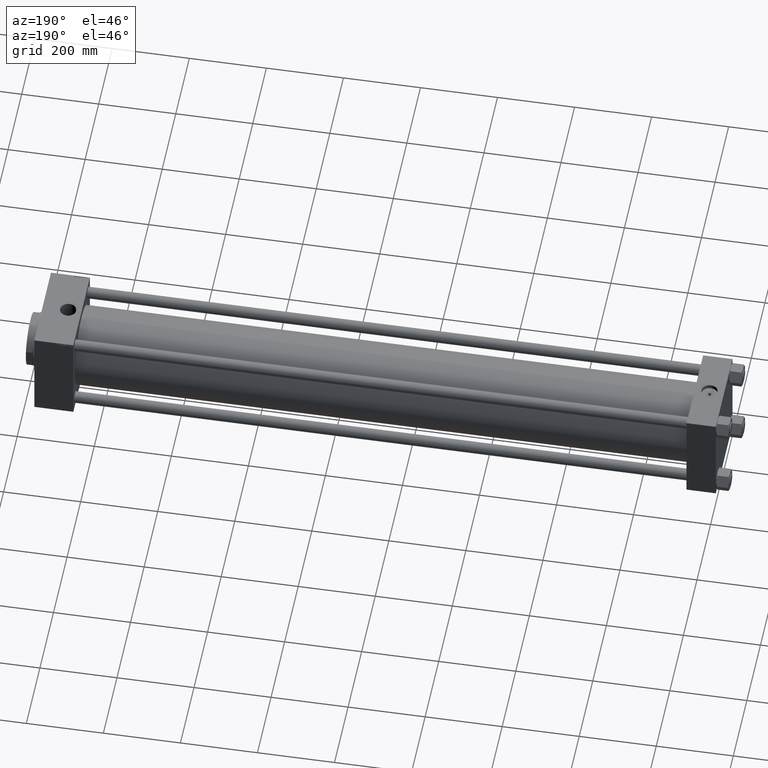
[diagram: clean part render]
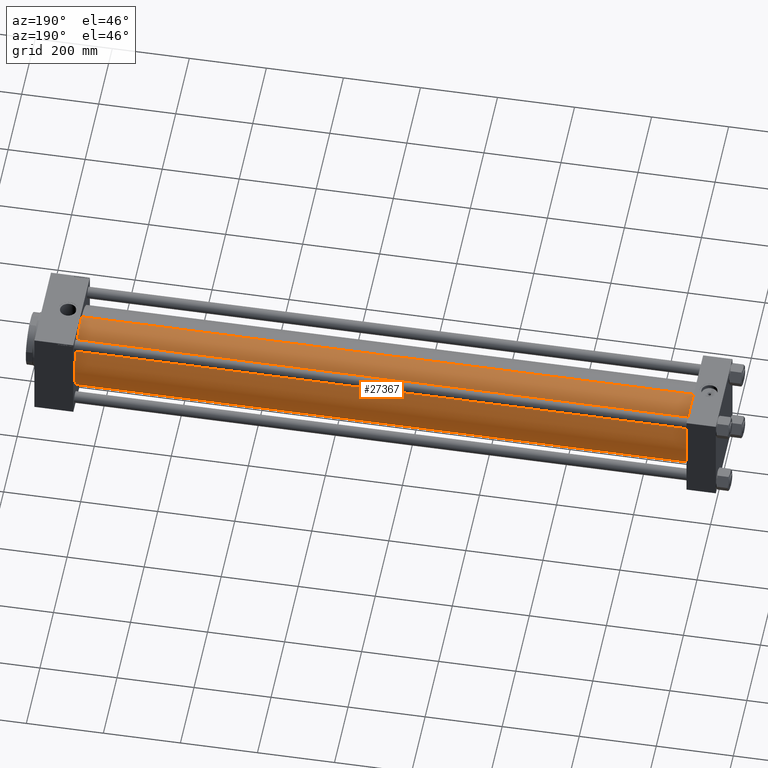
[diagram: same view with one face highlighted and labeled with its STEP entity id]
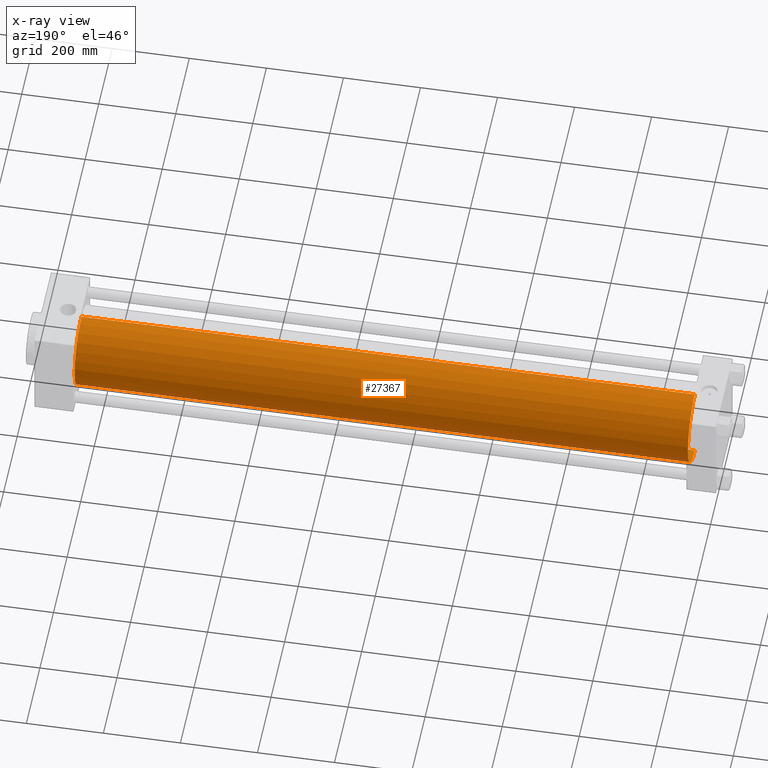
[diagram: x-ray of the same camera — body ghosted, the highlighted face saturated]
A machine part, auxiliary view. The second image highlights one B-rep face of the part: STEP entity #27367.
The next image is the same camera in x-ray: the body ghosted, the highlighted face saturated — about 0% of this face is hidden behind the body in this view.
In plain terms, the highlighted cylindrical surface (partial cylindrical patch) has radius 103 mm, axis along (-1, -0, -0).
Its self-contained STEP definition (entity closure, byte-faithful):
#619 = AXIS2_PLACEMENT_3D ( 'NONE', #39702, #35721, #37280 ) ;
#1627 = DIRECTION ( 'NONE',  ( 0.000000000000000000, 0.000000000000000000, 1.000000000000000000 ) ) ;
#3669 = EDGE_LOOP ( 'NONE', ( #8838, #10377, #6585, #37889 ) ) ;
#4778 = CIRCLE ( 'NONE', #15805, 103.0000000000000000 ) ;
#5349 = CYLINDRICAL_SURFACE ( 'NONE', #45106, 103.0000000000000000 ) ;
#6585 = ORIENTED_EDGE ( 'NONE', *, *, #42984, .T. ) ;
#8838 = ORIENTED_EDGE ( 'NONE', *, *, #38334, .F. ) ;
#8916 = CARTESIAN_POINT ( 'NONE',  ( 1668.000000000000227, -2.602085213965210642E-15, 103.0000000000000000 ) ) ;
#10377 = ORIENTED_EDGE ( 'NONE', *, *, #28055, .T. ) ;
#15805 = AXIS2_PLACEMENT_3D ( 'NONE', #50334, #30136, #50587 ) ;
#16356 = LINE ( 'NONE', #8916, #30403 ) ;
#16420 = VERTEX_POINT ( 'NONE', #37340 ) ;
#17814 = FACE_OUTER_BOUND ( 'NONE', #3669, .T. ) ;
#19240 = CIRCLE ( 'NONE', #619, 103.0000000000000000 ) ;
#20184 = CARTESIAN_POINT ( 'NONE',  ( 1668.000000000000227, -2.602085213965210642E-15, 103.0000000000000000 ) ) ;
#20537 = VECTOR ( 'NONE', #44674, 1000.000000000000000 ) ;
#21524 = DIRECTION ( 'NONE',  ( -1.000000000000000000, -0.000000000000000000, -0.000000000000000000 ) ) ;
#23496 = CARTESIAN_POINT ( 'NONE',  ( 76.00000000000007105, -2.602085213965210642E-15, 103.0000000000000000 ) ) ;
#27367 = ADVANCED_FACE ( 'NONE', ( #17814 ), #5349, .T. ) ;
#28055 = EDGE_CURVE ( 'NONE', #46917, #16420, #43883, .T. ) ;
#28545 = DIRECTION ( 'NONE',  ( -1.000000000000000000, -0.000000000000000000, -0.000000000000000000 ) ) ;
#30136 = DIRECTION ( 'NONE',  ( 1.000000000000000000, 0.000000000000000000, 0.000000000000000000 ) ) ;
#30403 = VECTOR ( 'NONE', #28545, 1000.000000000000000 ) ;
#33992 = CARTESIAN_POINT ( 'NONE',  ( 1668.000000000000227, -2.602085213965210642E-15, 0.000000000000000000 ) ) ;
#34117 = VERTEX_POINT ( 'NONE', #20184 ) ;
#35721 = DIRECTION ( 'NONE',  ( 1.000000000000000000, -0.000000000000000000, 0.000000000000000000 ) ) ;
#37280 = DIRECTION ( 'NONE',  ( 0.000000000000000000, 0.000000000000000000, 1.000000000000000000 ) ) ;
#37340 = CARTESIAN_POINT ( 'NONE',  ( 76.00000000000007105, 1.001177681725252697E-14, -103.0000000000000000 ) ) ;
#37889 = ORIENTED_EDGE ( 'NONE', *, *, #47775, .F. ) ;
#38334 = EDGE_CURVE ( 'NONE', #46917, #34117, #4778, .T. ) ;
#39702 = CARTESIAN_POINT ( 'NONE',  ( 76.00000000000007105, -2.602085213965210642E-15, 0.000000000000000000 ) ) ;
#42982 = VERTEX_POINT ( 'NONE', #23496 ) ;
#42984 = EDGE_CURVE ( 'NONE', #16420, #42982, #19240, .T. ) ;
#43883 = LINE ( 'NONE', #51592, #20537 ) ;
#44674 = DIRECTION ( 'NONE',  ( -1.000000000000000000, -0.000000000000000000, -0.000000000000000000 ) ) ;
#44676 = CARTESIAN_POINT ( 'NONE',  ( 1668.000000000000227, 1.001177681725252697E-14, -103.0000000000000000 ) ) ;
#45106 = AXIS2_PLACEMENT_3D ( 'NONE', #33992, #21524, #1627 ) ;
#46917 = VERTEX_POINT ( 'NONE', #44676 ) ;
#47775 = EDGE_CURVE ( 'NONE', #34117, #42982, #16356, .T. ) ;
#50334 = CARTESIAN_POINT ( 'NONE',  ( 1668.000000000000227, -2.602085213965210642E-15, 0.000000000000000000 ) ) ;
#50587 = DIRECTION ( 'NONE',  ( 0.000000000000000000, 0.000000000000000000, -1.000000000000000000 ) ) ;
#51592 = CARTESIAN_POINT ( 'NONE',  ( 1668.000000000000227, 1.001177681725252697E-14, -103.0000000000000000 ) ) ;